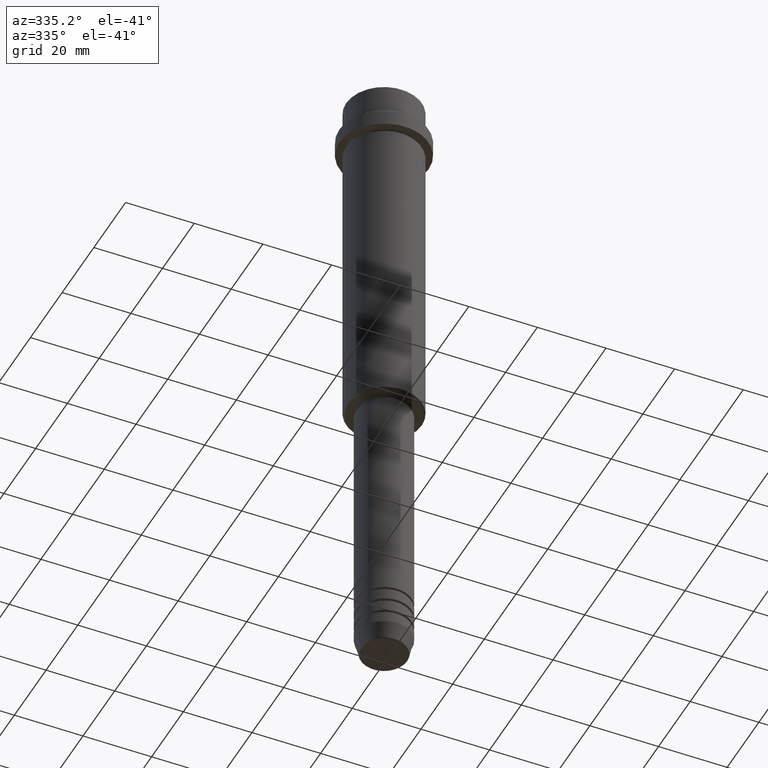
[diagram: clean part render]
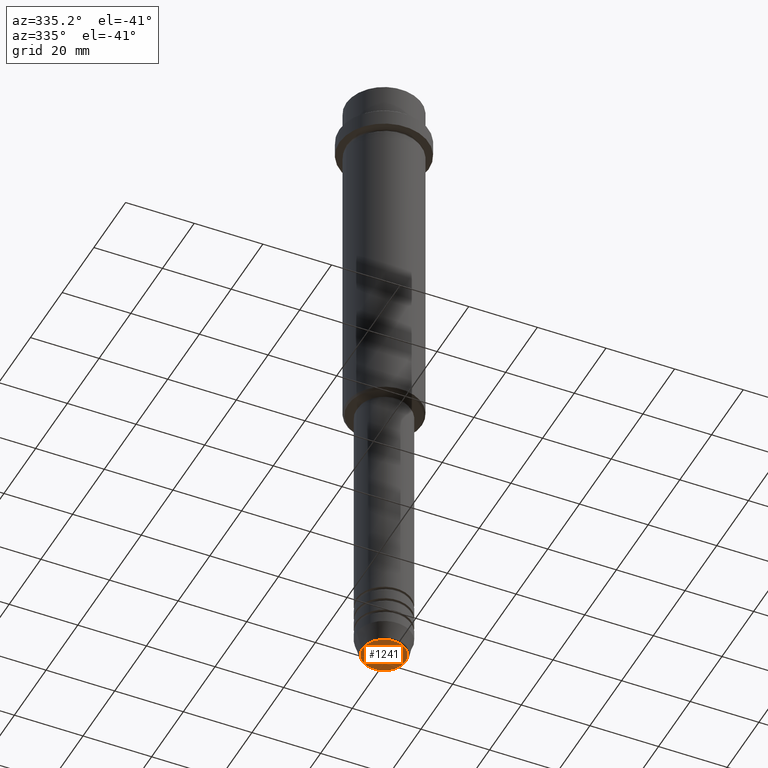
[diagram: same view with one face highlighted and labeled with its STEP entity id]
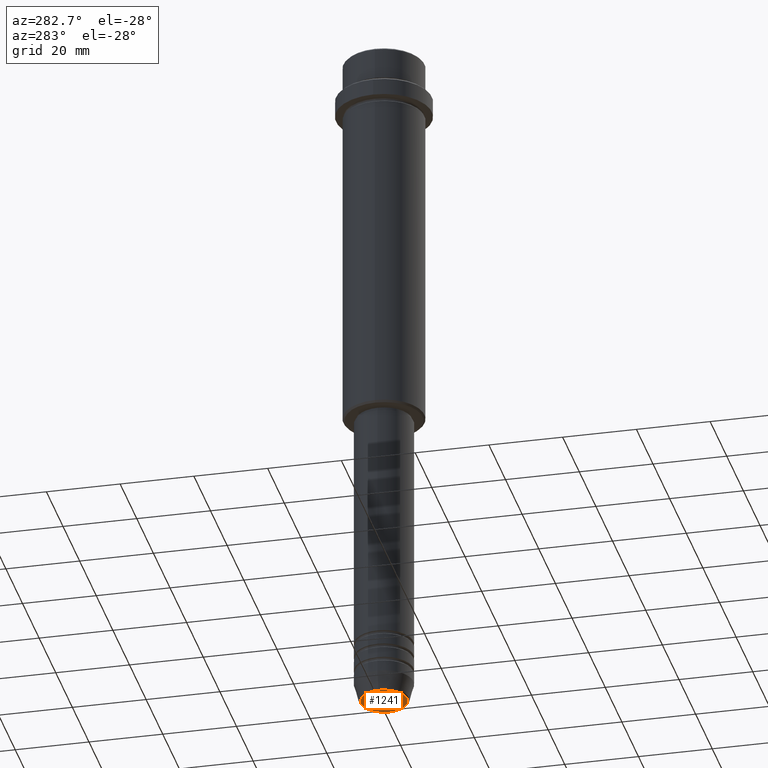
[diagram: same view with one face highlighted and labeled with its STEP entity id]
A machine part, auxiliary view. The second image highlights one B-rep face of the part: STEP entity #1241.
A second angle (auxiliary view) of the same face is appended — the face is thin or edge-on in the first view.
In plain terms, the highlighted planar face has unit normal (0, -0, 1).
Its self-contained STEP definition (entity closure, byte-faithful):
#64 = ORIENTED_EDGE ( 'NONE', *, *, #469, .T. ) ;
#143 = CARTESIAN_POINT ( 'NONE',  ( 0.000000000000000000, 0.000000000000000000, -190.0000000000000000 ) ) ;
#175 = AXIS2_PLACEMENT_3D ( 'NONE', #322, #752, #1066 ) ;
#186 = EDGE_LOOP ( 'NONE', ( #324, #64 ) ) ;
#205 = PLANE ( 'NONE',  #175 ) ;
#272 = VERTEX_POINT ( 'NONE', #695 ) ;
#322 = CARTESIAN_POINT ( 'NONE',  ( 0.000000000000000000, 0.000000000000000000, -190.0000000000000000 ) ) ;
#324 = ORIENTED_EDGE ( 'NONE', *, *, #486, .T. ) ;
#445 = FACE_OUTER_BOUND ( 'NONE', #186, .T. ) ;
#469 = EDGE_CURVE ( 'NONE', #272, #507, #1141, .T. ) ;
#486 = EDGE_CURVE ( 'NONE', #507, #272, #934, .T. ) ;
#507 = VERTEX_POINT ( 'NONE', #1340 ) ;
#556 = DIRECTION ( 'NONE',  ( 1.000000000000000000, 0.000000000000000000, 0.000000000000000000 ) ) ;
#561 = AXIS2_PLACEMENT_3D ( 'NONE', #887, #1198, #1315 ) ;
#695 = CARTESIAN_POINT ( 'NONE',  ( -6.276590543854904780, 7.982336011935122327E-16, -190.0000000000000000 ) ) ;
#711 = AXIS2_PLACEMENT_3D ( 'NONE', #143, #1212, #556 ) ;
#752 = DIRECTION ( 'NONE',  ( 0.000000000000000000, -0.000000000000000000, 1.000000000000000000 ) ) ;
#887 = CARTESIAN_POINT ( 'NONE',  ( 0.000000000000000000, 0.000000000000000000, -190.0000000000000000 ) ) ;
#934 = CIRCLE ( 'NONE', #561, 6.276590543854904780 ) ;
#1066 = DIRECTION ( 'NONE',  ( 1.000000000000000000, 0.000000000000000000, 0.000000000000000000 ) ) ;
#1141 = CIRCLE ( 'NONE', #711, 6.276590543854904780 ) ;
#1198 = DIRECTION ( 'NONE',  ( 0.000000000000000000, 0.000000000000000000, -1.000000000000000000 ) ) ;
#1212 = DIRECTION ( 'NONE',  ( 0.000000000000000000, 0.000000000000000000, -1.000000000000000000 ) ) ;
#1241 = ADVANCED_FACE ( 'NONE', ( #445 ), #205, .F. ) ;
#1315 = DIRECTION ( 'NONE',  ( 1.000000000000000000, 0.000000000000000000, 0.000000000000000000 ) ) ;
#1340 = CARTESIAN_POINT ( 'NONE',  ( 6.276590543854904780, 0.000000000000000000, -190.0000000000000000 ) ) ;